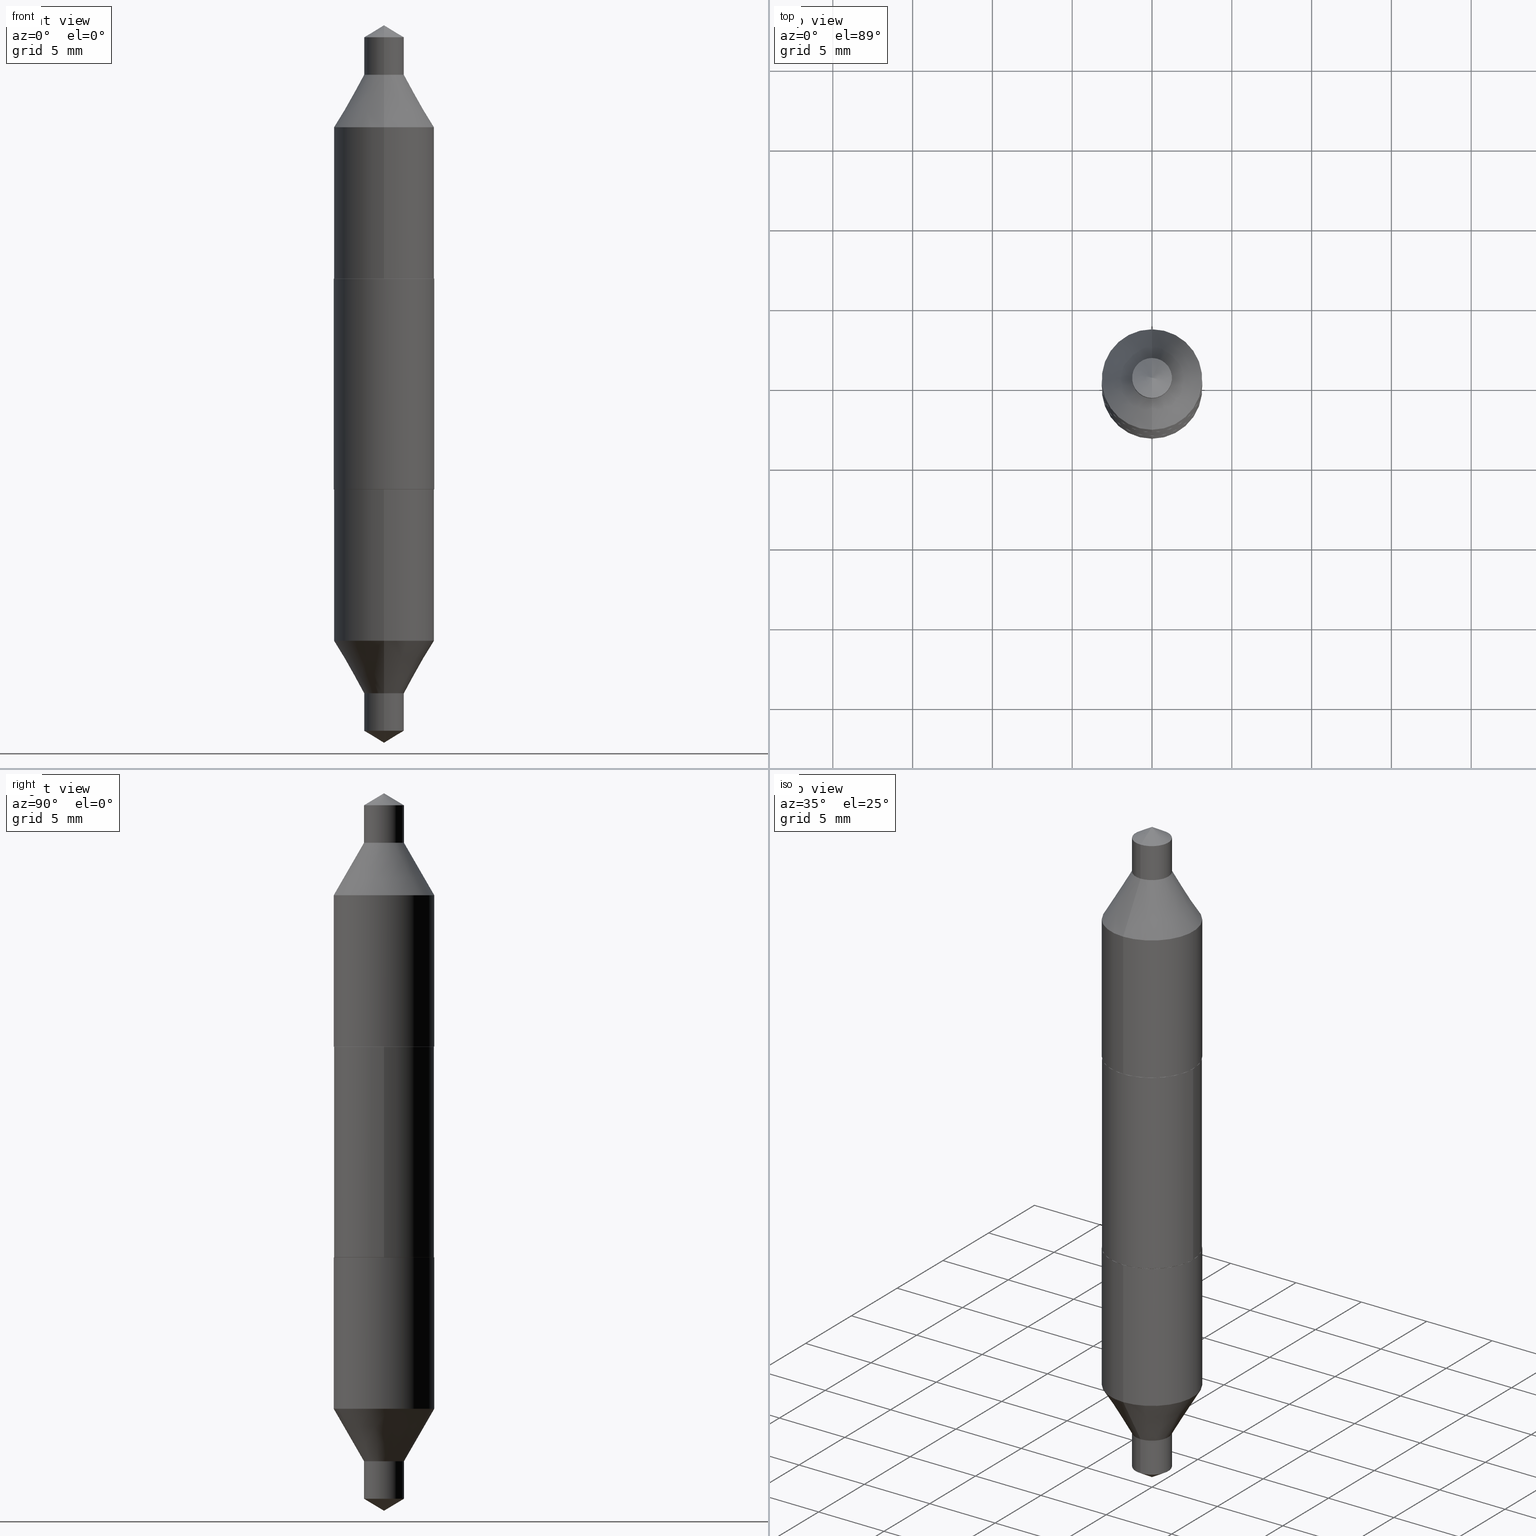
[diagram: canonical four-view strip — front | top / right | iso, engineering-drawing reading convention]
A machine part, canonical four-view strip (front | top / right | iso — engineering-drawing reading convention). The complete STEP part file that produces these views, byte-faithful:
ISO-10303-21;
HEADER;
FILE_DESCRIPTION (( 'STEP AP203' ),
    '1' );
FILE_NAME ('67047.STEP',
    '2024-04-19T15:18:08',
    ( '' ),
    ( '' ),
    'SwSTEP 2.0',
    'SolidWorks 2023',
    '' );
FILE_SCHEMA (( 'CONFIG_CONTROL_DESIGN' ));
ENDSEC;

DATA;
#1 = VERTEX_POINT ( 'NONE', #28 ) ;
#2 = DIRECTION ( 'NONE',  ( 6.982962677686265922E-15, 1.000000000000000000, -3.511075687629503585E-15 ) ) ;
#3 = EDGE_LOOP ( 'NONE', ( #656, #435, #276, #526 ) ) ;
#4 = DIRECTION ( 'NONE',  ( 1.000000000000000000, -6.982962677686266711E-15, 0.000000000000000000 ) ) ;
#5 = ORIENTED_EDGE ( 'NONE', *, *, #601, .F. ) ;
#6 = CIRCLE ( 'NONE', #580, 0.04920000000000000762 ) ;
#7 = AXIS2_PLACEMENT_3D ( 'NONE', #625, #146, #258 ) ;
#8 = CYLINDRICAL_SURFACE ( 'NONE', #59, 0.04920000000000000762 ) ;
#9 = VERTEX_POINT ( 'NONE', #26 ) ;
#10 = PRODUCT_DEFINITION ( 'UNKNOWN', '', #174, #141 ) ;
#11 = AXIS2_PLACEMENT_3D ( 'NONE', #342, #17, #13 ) ;
#12 = DIRECTION ( 'NONE',  ( -2.431786145558266380E-29, 3.511075687629503585E-15, 1.000000000000000000 ) ) ;
#13 = DIRECTION ( 'NONE',  ( -6.982962677686265922E-15, -1.000000000000000000, 2.776268286244169687E-15 ) ) ;
#14 = EDGE_CURVE ( 'NONE', #177, #545, #406, .T. ) ;
#15 = ADVANCED_FACE ( 'NONE', ( #78 ), #152, .T. ) ;
#16 = CARTESIAN_POINT ( 'NONE',  ( -0.1235000000000000264, -3.026486943549399803E-17, -0.2600000000000000089 ) ) ;
#17 = DIRECTION ( 'NONE',  ( 2.459151466812006814E-29, -3.471886990056787975E-15, -1.000000000000000000 ) ) ;
#18 = EDGE_LOOP ( 'NONE', ( #548, #379, #226 ) ) ;
#19 = AXIS2_PLACEMENT_3D ( 'NONE', #36, #31, #351 ) ;
#20 = DIRECTION ( 'NONE',  ( -2.431786145558266380E-29, 3.511075687629503191E-15, 1.000000000000000000 ) ) ;
#21 = AXIS2_PLACEMENT_3D ( 'NONE', #417, #52, #309 ) ;
#22 = CC_DESIGN_APPROVAL ( #461, ( #10 ) ) ;
#23 = DIRECTION ( 'NONE',  ( -1.000000000000000000, 6.982962677686265922E-15, -4.876176775795935793E-29 ) ) ;
#24 = EDGE_CURVE ( 'NONE', #335, #238, #188, .T. ) ;
#25 = DIRECTION ( 'NONE',  ( -2.459151466812006814E-29, 3.471886990056787975E-15, 1.000000000000000000 ) ) ;
#26 = CARTESIAN_POINT ( 'NONE',  ( -0.1240000000000000685, 8.810729923425244214E-16, 0.2595000000000000084 ) ) ;
#27 = DIRECTION ( 'NONE',  ( -2.459151466812006814E-29, 3.471886990056787975E-15, 1.000000000000000000 ) ) ;
#28 = CARTESIAN_POINT ( 'NONE',  ( 0.1235000000000000264, 4.538925740496383212E-17, 0.2600000000000000089 ) ) ;
#29 = VECTOR ( 'NONE', #250, 39.37007874015748854 ) ;
#30 = DIRECTION ( 'NONE',  ( -2.431786145558266380E-29, 3.511075687629503191E-15, 1.000000000000000000 ) ) ;
#31 = DIRECTION ( 'NONE',  ( 2.459151466812006814E-29, -3.471886990056787975E-15, -1.000000000000000000 ) ) ;
#32 = VECTOR ( 'NONE', #701, 39.37007874015748854 ) ;
#33 = AXIS2_PLACEMENT_3D ( 'NONE', #619, #296, #633 ) ;
#34 = CC_DESIGN_PERSON_AND_ORGANIZATION_ASSIGNMENT ( #155, #201, ( #174 ) ) ;
#35 = DIRECTION ( 'NONE',  ( 2.459151466812006814E-29, -3.471886990056787975E-15, -1.000000000000000000 ) ) ;
#36 = CARTESIAN_POINT ( 'NONE',  ( 9.464419532599683666E-28, -1.336107496585793866E-13, -38.48507874015748342 ) ) ;
#37 = ORIENTED_EDGE ( 'NONE', *, *, #573, .T. ) ;
#38 = EDGE_LOOP ( 'NONE', ( #475, #91, #648, #485 ) ) ;
#39 = PERSON_AND_ORGANIZATION_ROLE ( 'design_owner' ) ;
#40 = EDGE_CURVE ( 'NONE', #545, #9, #407, .T. ) ;
#41 = EDGE_LOOP ( 'NONE', ( #302, #689, #278, #273 ) ) ;
#42 = CARTESIAN_POINT ( 'NONE',  ( -3.435617637421579667E-16, -0.04920000000000091661, -0.2599999999999997868 ) ) ;
#43 = DATE_TIME_ROLE ( 'classification_date' ) ;
#44 = EDGE_LOOP ( 'NONE', ( #209, #411, #437, #595 ) ) ;
#45 = LINE ( 'NONE', #584, #125 ) ;
#46 = DIRECTION ( 'NONE',  ( 1.000000000000000000, -6.982962677686266711E-15, 0.000000000000000000 ) ) ;
#47 = CIRCLE ( 'NONE', #133, 0.1240000000000001379 ) ;
#48 = CIRCLE ( 'NONE', #570, 0.1240000000000001379 ) ;
#49 = EDGE_CURVE ( 'NONE', #331, #167, #85, .T. ) ;
#50 = DIRECTION ( 'NONE',  ( 1.000000000000000000, 0.000000000000000000, 0.000000000000000000 ) ) ;
#51 = EDGE_CURVE ( 'NONE', #1, #545, #624, .T. ) ;
#52 = DIRECTION ( 'NONE',  ( -2.445468806185136597E-29, 3.491481338843145583E-15, 1.000000000000000000 ) ) ;
#53 = CALENDAR_DATE ( 2024, 19, 4 ) ;
#54 = CARTESIAN_POINT ( 'NONE',  ( -2.100093278552185320E-29, 2.975077404715579644E-15, 0.8554376575438441543 ) ) ;
#55 = ORIENTED_EDGE ( 'NONE', *, *, #24, .T. ) ;
#56 = DIRECTION ( 'NONE',  ( -2.459151466812006814E-29, 3.471886990056787975E-15, 1.000000000000000000 ) ) ;
#57 = EDGE_LOOP ( 'NONE', ( #534, #37, #321 ) ) ;
#58 = ORIENTED_EDGE ( 'NONE', *, *, #99, .F. ) ;
#59 = AXIS2_PLACEMENT_3D ( 'NONE', #320, #594, #552 ) ;
#60 = APPROVAL ( #532, 'UNSPECIFIED' ) ;
#61 = CYLINDRICAL_SURFACE ( 'NONE', #282, 0.1240000000000000269 ) ;
#62 = ORIENTED_EDGE ( 'NONE', *, *, #343, .F. ) ;
#63 = DIRECTION ( 'NONE',  ( -2.445468806185136597E-29, 3.491481338843145583E-15, 1.000000000000000000 ) ) ;
#64 = ADVANCED_FACE ( 'NONE', ( #560 ), #674, .T. ) ;
#65 = EDGE_LOOP ( 'NONE', ( #383, #557, #551, #271 ) ) ;
#66 = DIRECTION ( 'NONE',  ( 1.000000000000000000, -6.982962677686266711E-15, 4.876176775795935793E-29 ) ) ;
#67 = ORIENTED_EDGE ( 'NONE', *, *, #139, .F. ) ;
#68 = CONICAL_SURFACE ( 'NONE', #433, 65.52281426576880108, 1.029744258676656976 ) ;
#69 = CARTESIAN_POINT ( 'NONE',  ( -1.872775077414575023E-29, 2.654144304097782334E-15, 0.7630000000000000115 ) ) ;
#70 = ADVANCED_FACE ( 'NONE', ( #136 ), #244, .T. ) ;
#71 = DIRECTION ( 'NONE',  ( -5.985567269335927080E-15, -0.8571673007021154422, -0.5150380749100490485 ) ) ;
#72 = CC_DESIGN_PERSON_AND_ORGANIZATION_ASSIGNMENT ( #312, #39, ( #668 ) ) ;
#73 = DIRECTION ( 'NONE',  ( 1.000000000000000000, -6.982962677686267499E-15, 0.000000000000000000 ) ) ;
#74 = DIRECTION ( 'NONE',  ( -2.431786145558266380E-29, 3.511075687629503191E-15, 1.000000000000000000 ) ) ;
#75 = VECTOR ( 'NONE', #129, 39.37007874015748143 ) ;
#76 = CONICAL_SURFACE ( 'NONE', #575, 65.52281426576880108, 1.029744258676656976 ) ;
#77 = CARTESIAN_POINT ( 'NONE',  ( 8.810729923425398042E-16, 0.1239999999999990971, -0.2600000000000004530 ) ) ;
#78 = FACE_OUTER_BOUND ( 'NONE', #231, .T. ) ;
#79 = AXIS2_PLACEMENT_3D ( 'NONE', #178, #515, #669 ) ;
#80 = CARTESIAN_POINT ( 'NONE',  ( 6.358218896081355544E-30, -9.077851480992179461E-16, -0.2600000000000000089 ) ) ;
#81 = DIRECTION ( 'NONE',  ( 2.445468806185136597E-29, -3.491481338843145583E-15, -1.000000000000000000 ) ) ;
#82 = DIRECTION ( 'NONE',  ( -2.445468806185136597E-29, 3.491481338843145583E-15, 1.000000000000000000 ) ) ;
#83 = CARTESIAN_POINT ( 'NONE',  ( 1.859010320823943778E-29, -2.673856218976857578E-15, -0.7630000000000000115 ) ) ;
#84 = MANIFOLD_SOLID_BREP ( 'Body-Move/Copy2[1]', #531 ) ;
#85 = CIRCLE ( 'NONE', #97, 0.1240000000000001379 ) ;
#86 = COORDINATED_UNIVERSAL_TIME_OFFSET ( 5, 0, .BEHIND. ) ;
#87 = DIRECTION ( 'NONE',  ( -6.982962677686265922E-15, -1.000000000000000000, 3.304654831045475864E-15 ) ) ;
#88 = DIRECTION ( 'NONE',  ( -6.982962677686265922E-15, -1.000000000000000000, 3.580042733632603487E-15 ) ) ;
#89 = FACE_OUTER_BOUND ( 'NONE', #205, .T. ) ;
#90 = CIRCLE ( 'NONE', #356, 0.04920000000000000762 ) ;
#91 = ORIENTED_EDGE ( 'NONE', *, *, #225, .T. ) ;
#92 = EDGE_CURVE ( 'NONE', #696, #212, #611, .T. ) ;
#93 = LENGTH_MEASURE_WITH_UNIT ( LENGTH_MEASURE( 0.02539999999999999897 ), #304 );
#94 = DIRECTION ( 'NONE',  ( -2.431786145558266380E-29, 3.511075687629503585E-15, 1.000000000000000000 ) ) ;
#95 = DIRECTION ( 'NONE',  ( 2.459151466812006814E-29, -3.471886990056787975E-15, -1.000000000000000000 ) ) ;
#96 = CIRCLE ( 'NONE', #413, 0.1235000000000000264 ) ;
#97 = AXIS2_PLACEMENT_3D ( 'NONE', #402, #297, #620 ) ;
#98 = DIRECTION ( 'NONE',  ( -6.982962677686265922E-15, -1.000000000000000000, 2.776268286244169687E-15 ) ) ;
#99 = EDGE_CURVE ( 'NONE', #696, #335, #242, .T. ) ;
#100 = DIRECTION ( 'NONE',  ( 1.000000000000000000, -6.982962677686266711E-15, 4.876176775795935793E-29 ) ) ;
#101 = EDGE_CURVE ( 'NONE', #489, #267, #118, .T. ) ;
#102 = PERSON_AND_ORGANIZATION_ROLE ( 'creator' ) ;
#103 = CARTESIAN_POINT ( 'NONE',  ( 8.507017517236641140E-16, 0.1240000000000023306, 0.6334425995938456344 ) ) ;
#104 = ORIENTED_EDGE ( 'NONE', *, *, #247, .F. ) ;
#105 = DIRECTION ( 'NONE',  ( -2.445468806185136597E-29, 3.491481338843145583E-15, 1.000000000000000000 ) ) ;
#106 = VERTEX_POINT ( 'NONE', #233 ) ;
#107 = EDGE_LOOP ( 'NONE', ( #429, #221 ) ) ;
#108 = DIRECTION ( 'NONE',  ( -6.982962677686265922E-15, -1.000000000000000000, 2.776268286244169687E-15 ) ) ;
#109 = ORIENTED_EDGE ( 'NONE', *, *, #590, .T. ) ;
#110 = AXIS2_PLACEMENT_3D ( 'NONE', #165, #317, #279 ) ;
#111 = AXIS2_PLACEMENT_3D ( 'NONE', #232, #82, #73 ) ;
#112 = AXIS2_PLACEMENT_3D ( 'NONE', #605, #27, #189 ) ;
#113 = ADVANCED_FACE ( 'NONE', ( #670 ), #285, .T. ) ;
#114 = LINE ( 'NONE', #491, #32 ) ;
#115 = ORIENTED_EDGE ( 'NONE', *, *, #389, .F. ) ;
#116 = DIRECTION ( 'NONE',  ( 2.459151466812006814E-29, -3.471886990056787975E-15, -1.000000000000000000 ) ) ;
#117 = EDGE_LOOP ( 'NONE', ( #682, #173, #650, #115 ) ) ;
#118 = CIRCLE ( 'NONE', #157, 0.04920000000000000762 ) ;
#119 = EDGE_CURVE ( 'NONE', #167, #498, #568, .T. ) ;
#120 = VECTOR ( 'NONE', #255, 39.37007874015748854 ) ;
#121 = CARTESIAN_POINT ( 'NONE',  ( -3.435617637421457394E-16, -0.04920000000000267909, -0.7629999999999999005 ) ) ;
#122 = ADVANCED_FACE ( 'NONE', ( #661 ), #606, .T. ) ;
#123 = ORIENTED_EDGE ( 'NONE', *, *, #171, .T. ) ;
#124 = CIRCLE ( 'NONE', #500, 0.1239999999999999991 ) ;
#125 = VECTOR ( 'NONE', #362, 39.37007874015748143 ) ;
#126 = CARTESIAN_POINT ( 'NONE',  ( -0.1240000000000000407, -2.496641508727166066E-17, -0.2595000000000000084 ) ) ;
#127 = FACE_OUTER_BOUND ( 'NONE', #57, .T. ) ;
#128 = LINE ( 'NONE', #664, #642 ) ;
#129 = DIRECTION ( 'NONE',  ( -2.445468806185136877E-29, 3.491481338843145188E-15, 1.000000000000000000 ) ) ;
#130 = CC_DESIGN_PERSON_AND_ORGANIZATION_ASSIGNMENT ( #257, #412, ( #447 ) ) ;
#131 = DIRECTION ( 'NONE',  ( -2.431786145558266380E-29, 3.511075687629503585E-15, 1.000000000000000000 ) ) ;
#132 = DIRECTION ( 'NONE',  ( 2.459151466812006814E-29, -3.471886990056787975E-15, -1.000000000000000000 ) ) ;
#133 = AXIS2_PLACEMENT_3D ( 'NONE', #561, #25, #386 ) ;
#134 = DIRECTION ( 'NONE',  ( -6.982962677686265922E-15, -1.000000000000000000, 3.580042733632603487E-15 ) ) ;
#135 = APPROVAL_PERSON_ORGANIZATION ( #306, #60, #470 ) ;
#136 = FACE_OUTER_BOUND ( 'NONE', #107, .T. ) ;
#137 = PERSON_AND_ORGANIZATION ( #400, #479 ) ;
#138 = VERTEX_POINT ( 'NONE', #514 ) ;
#139 = EDGE_CURVE ( 'NONE', #615, #177, #332, .T. ) ;
#140 = ADVANCED_FACE ( 'NONE', ( #127 ), #76, .T. ) ;
#141 = DESIGN_CONTEXT ( 'detailed design', #527, 'design' ) ;
#142 = LINE ( 'NONE', #42, #365 ) ;
#143 = EDGE_CURVE ( 'NONE', #267, #167, #507, .T. ) ;
#144 = APPROVAL_DATE_TIME ( #679, #60 ) ;
#145 = EDGE_LOOP ( 'NONE', ( #5, #492, #159, #67 ) ) ;
#146 = DIRECTION ( 'NONE',  ( -2.431786145558266380E-29, 3.511075687629503191E-15, 1.000000000000000000 ) ) ;
#147 = ORIENTED_EDGE ( 'NONE', *, *, #673, .T. ) ;
#148 = CARTESIAN_POINT ( 'NONE',  ( 3.375365014903383048E-16, 0.04920000000000297052, 0.8554376575438440433 ) ) ;
#149 = CONICAL_SURFACE ( 'NONE', #184, 0.1235000000000000264, 0.7853981633974311816 ) ;
#150 = CARTESIAN_POINT ( 'NONE',  ( -0.1235000000000000264, 1.755898904988734470E-15, 0.2600000000000000089 ) ) ;
#151 = ORIENTED_EDGE ( 'NONE', *, *, #521, .T. ) ;
#152 = CONICAL_SURFACE ( 'NONE', #11, 0.04920000000000000762, 0.5235987755982929315 ) ;
#153 = DIRECTION ( 'NONE',  ( -6.982962677686265922E-15, -1.000000000000000000, 3.470335357805211813E-15 ) ) ;
#154 = ADVANCED_FACE ( 'NONE', ( #637 ), #578, .T. ) ;
#155 = PERSON_AND_ORGANIZATION ( #400, #479 ) ;
#156 = FACE_OUTER_BOUND ( 'NONE', #38, .T. ) ;
#157 = AXIS2_PLACEMENT_3D ( 'NONE', #83, #517, #246 ) ;
#158 = CYLINDRICAL_SURFACE ( 'NONE', #270, 0.1240000000000000269 ) ;
#159 = ORIENTED_EDGE ( 'NONE', *, *, #418, .T. ) ;
#160 = EDGE_LOOP ( 'NONE', ( #329, #456, #495 ) ) ;
#161 = DIRECTION ( 'NONE',  ( -6.982962677686265922E-15, -1.000000000000000000, 2.776268286244169687E-15 ) ) ;
#162 = ORIENTED_EDGE ( 'NONE', *, *, #101, .F. ) ;
#163 = AXIS2_PLACEMENT_3D ( 'NONE', #488, #643, #599 ) ;
#164 = SECURITY_CLASSIFICATION_LEVEL ( 'unclassified' ) ;
#165 = CARTESIAN_POINT ( 'NONE',  ( 1.859010320823943778E-29, -2.673856218976857578E-15, -0.7630000000000000115 ) ) ;
#166 = EDGE_LOOP ( 'NONE', ( #58, #600, #654 ) ) ;
#167 = VERTEX_POINT ( 'NONE', #630 ) ;
#168 = CYLINDRICAL_SURFACE ( 'NONE', #163, 0.04920000000000000762 ) ;
#169 = AXIS2_PLACEMENT_3D ( 'NONE', #476, #530, #204 ) ;
#170 = ORIENTED_EDGE ( 'NONE', *, *, #471, .T. ) ;
#171 = EDGE_CURVE ( 'NONE', #489, #331, #639, .T. ) ;
#172 = DIRECTION ( 'NONE',  ( 1.000000000000000000, -6.982962677686267499E-15, 0.000000000000000000 ) ) ;
#173 = ORIENTED_EDGE ( 'NONE', *, *, #361, .T. ) ;
#174 = PRODUCT_DEFINITION_FORMATION_WITH_SPECIFIED_SOURCE ( 'ANY', '', #668, .NOT_KNOWN. ) ;
#175 = EDGE_CURVE ( 'NONE', #702, #9, #301, .T. ) ;
#176 = DIRECTION ( 'NONE',  ( -2.459151466812006534E-29, 3.471886990056787975E-15, 1.000000000000000000 ) ) ;
#177 = VERTEX_POINT ( 'NONE', #363 ) ;
#178 = CARTESIAN_POINT ( 'NONE',  ( -1.872775077414575023E-29, 2.654144304097782334E-15, 0.7630000000000000115 ) ) ;
#179 = ORIENTED_EDGE ( 'NONE', *, *, #629, .T. ) ;
#180 = CIRCLE ( 'NONE', #659, 0.1240000000000001379 ) ;
#181 = AXIS2_PLACEMENT_3D ( 'NONE', #618, #398, #23 ) ;
#182 = DIRECTION ( 'NONE',  ( -6.982962677686265922E-15, -1.000000000000000000, 2.776268286244169687E-15 ) ) ;
#183 = DIRECTION ( 'NONE',  ( -2.445468806185136597E-29, 3.491481338843145583E-15, 1.000000000000000000 ) ) ;
#184 = AXIS2_PLACEMENT_3D ( 'NONE', #523, #582, #46 ) ;
#185 = EDGE_LOOP ( 'NONE', ( #416, #307, #123, #355 ) ) ;
#186 = AXIS2_PLACEMENT_3D ( 'NONE', #627, #30, #88 ) ;
#187 = CYLINDRICAL_SURFACE ( 'NONE', #547, 0.1240000000000000685 ) ;
#188 = LINE ( 'NONE', #236, #341 ) ;
#189 = DIRECTION ( 'NONE',  ( -6.982962677686265922E-15, -1.000000000000000000, 3.580042733632603487E-15 ) ) ;
#190 = CARTESIAN_POINT ( 'NONE',  ( 0.1240000000000000269, -8.658873720330972259E-16, 6.046459201986962037E-30 ) ) ;
#191 = EDGE_CURVE ( 'NONE', #388, #328, #96, .T. ) ;
#192 = VECTOR ( 'NONE', #290, 39.37007874015748854 ) ;
#193 = LINE ( 'NONE', #394, #325 ) ;
#194 = DIRECTION ( 'NONE',  ( 1.000000000000000000, -6.982962677686267499E-15, 0.000000000000000000 ) ) ;
#195 = CONICAL_SURFACE ( 'NONE', #206, 0.04920000000000000762, 0.5235987755982929315 ) ;
#196 = DIRECTION ( 'NONE',  ( 0.000000000000000000, 0.000000000000000000, 1.000000000000000000 ) ) ;
#197 = CIRCLE ( 'NONE', #112, 0.1239999999999999991 ) ;
#198 = CARTESIAN_POINT ( 'NONE',  ( 6.345991552050428931E-30, -9.060394074297962454E-16, -0.2595000000000000084 ) ) ;
#199 = CC_DESIGN_DATE_AND_TIME_ASSIGNMENT ( #364, #43, ( #447 ) ) ;
#200 = CARTESIAN_POINT ( 'NONE',  ( -6.358218896081354143E-30, 9.077851480992177489E-16, 0.2599999999999999534 ) ) ;
#201 = PERSON_AND_ORGANIZATION_ROLE ( 'design_supplier' ) ;
#202 = CLOSED_SHELL ( 'NONE', ( #15, #399, #241, #113, #268, #426, #64, #593, #370 ) ) ;
#203 = AXIS2_PLACEMENT_3D ( 'NONE', #672, #132, #345 ) ;
#204 = DIRECTION ( 'NONE',  ( -1.000000000000000000, 6.982962677686265922E-15, -4.876176775795935793E-29 ) ) ;
#205 = EDGE_LOOP ( 'NONE', ( #104, #229, #109, #589 ) ) ;
#206 = AXIS2_PLACEMENT_3D ( 'NONE', #374, #215, #161 ) ;
#207 = CARTESIAN_POINT ( 'NONE',  ( 6.358218896081355544E-30, -9.077851480992179461E-16, -0.2600000000000000089 ) ) ;
#208 = VECTOR ( 'NONE', #35, 39.37007874015748143 ) ;
#209 = ORIENTED_EDGE ( 'NONE', *, *, #175, .F. ) ;
#210 =( NAMED_UNIT ( * ) PLANE_ANGLE_UNIT ( ) SI_UNIT ( $, .RADIAN. ) );
#211 = FACE_OUTER_BOUND ( 'NONE', #41, .T. ) ;
#212 = VERTEX_POINT ( 'NONE', #148 ) ;
#213 = APPROVAL_DATE_TIME ( #692, #461 ) ;
#214 = DIRECTION ( 'NONE',  ( -6.982962677686268288E-15, -1.000000000000000000, 3.602282186708557778E-15 ) ) ;
#215 = DIRECTION ( 'NONE',  ( -2.431786145558266380E-29, 3.511075687629503191E-15, 1.000000000000000000 ) ) ;
#216 = ORIENTED_EDGE ( 'NONE', *, *, #612, .T. ) ;
#217 = ORIENTED_EDGE ( 'NONE', *, *, #481, .T. ) ;
#218 = ORIENTED_EDGE ( 'NONE', *, *, #266, .T. ) ;
#219 = DIRECTION ( 'NONE',  ( 6.982962677686265922E-15, 1.000000000000000000, -3.471886990056787975E-15 ) ) ;
#220 = EDGE_CURVE ( 'NONE', #334, #489, #142, .T. ) ;
#221 = ORIENTED_EDGE ( 'NONE', *, *, #555, .F. ) ;
#222 = CARTESIAN_POINT ( 'NONE',  ( 6.358218896081355544E-30, -9.077851480992179461E-16, -0.2600000000000000089 ) ) ;
#223 = ORIENTED_EDGE ( 'NONE', *, *, #414, .T. ) ;
#224 = PLANE ( 'NONE',  #291 ) ;
#225 = EDGE_CURVE ( 'NONE', #167, #331, #180, .T. ) ;
#226 = ORIENTED_EDGE ( 'NONE', *, *, #343, .T. ) ;
#227 = AXIS2_PLACEMENT_3D ( 'NONE', #549, #373, #272 ) ;
#228 = LOCAL_TIME ( 11, 18, 8.000000000000000000, #635 ) ;
#229 = ORIENTED_EDGE ( 'NONE', *, *, #175, .T. ) ;
#230 = PLANE ( 'NONE',  #300 ) ;
#231 = EDGE_LOOP ( 'NONE', ( #387, #217, #216, #596 ) ) ;
#232 = CARTESIAN_POINT ( 'NONE',  ( -6.345991552050428931E-30, 9.060394074297962454E-16, 0.2595000000000000084 ) ) ;
#233 = CARTESIAN_POINT ( 'NONE',  ( 8.507017517236590850E-16, 0.1240000000000009012, 0.2599999999999995648 ) ) ;
#234 = DIRECTION ( 'NONE',  ( -2.431786145558266380E-29, 3.511075687629503191E-15, 1.000000000000000000 ) ) ;
#235 = ADVANCED_FACE ( 'NONE', ( #680 ), #149, .T. ) ;
#236 = CARTESIAN_POINT ( 'NONE',  ( -3.435617637421706871E-16, -0.04919999999999910556, 0.2600000000000001199 ) ) ;
#237 = CIRCLE ( 'NONE', #652, 0.04920000000000000762 ) ;
#238 = VERTEX_POINT ( 'NONE', #305 ) ;
#239 = VECTOR ( 'NONE', #397, 39.37007874015748854 ) ;
#240 = CARTESIAN_POINT ( 'NONE',  ( 2.159308112351996644E-29, -3.097112922183204324E-15, -0.8850000000000000089 ) ) ;
#241 = ADVANCED_FACE ( 'NONE', ( #423 ), #403, .T. ) ;
#242 = LINE ( 'NONE', #460, #428 ) ;
#243 = CARTESIAN_POINT ( 'NONE',  ( -6.358218896081355544E-30, 9.077851480992179461E-16, 0.2600000000000000089 ) ) ;
#244 = PLANE ( 'NONE',  #181 ) ;
#245 = CARTESIAN_POINT ( 'NONE',  ( 2.152130738819065780E-29, -3.107301983552110359E-15, -0.8850000000000000089 ) ) ;
#246 = DIRECTION ( 'NONE',  ( -6.982962677686265922E-15, -1.000000000000000000, 2.776268286244169687E-15 ) ) ;
#247 = EDGE_CURVE ( 'NONE', #702, #1, #313, .T. ) ;
#248 = CONICAL_SURFACE ( 'NONE', #227, 0.04920000000000000762, 0.5235987755982929315 ) ;
#249 = DIMENSIONAL_EXPONENTS ( 1.000000000000000000, 0.000000000000000000, 0.000000000000000000, 0.000000000000000000, 0.000000000000000000, 0.000000000000000000, 0.000000000000000000 ) ;
#250 = DIRECTION ( 'NONE',  ( 3.552713678800443343E-15, 0.4999999999999979461, 0.8660254037844399289 ) ) ;
#251 = DATE_TIME_ROLE ( 'creation_date' ) ;
#252 = DIRECTION ( 'NONE',  ( -2.445468806185136597E-29, 3.491481338843145583E-15, 1.000000000000000000 ) ) ;
#253 = DIRECTION ( 'NONE',  ( -6.982962677686265922E-15, -1.000000000000000000, 2.776268286244169687E-15 ) ) ;
#254 = EDGE_LOOP ( 'NONE', ( #223, #179, #662, #655 ) ) ;
#255 = DIRECTION ( 'NONE',  ( -0.7071067811865353603, 2.382254525458581785E-15, -0.7071067811865595631 ) ) ;
#256 = ADVANCED_FACE ( 'NONE', ( #314 ), #299, .T. ) ;
#257 = PERSON_AND_ORGANIZATION ( #400, #479 ) ;
#258 = DIRECTION ( 'NONE',  ( -6.982962677686265922E-15, -1.000000000000000000, 3.580042733632601120E-15 ) ) ;
#259 = VECTOR ( 'NONE', #559, 39.37007874015748143 ) ;
#260 = CYLINDRICAL_SURFACE ( 'NONE', #420, 0.1240000000000000685 ) ;
#261 = APPROVAL_STATUS ( 'not_yet_approved' ) ;
#262 = CALENDAR_DATE ( 2024, 19, 4 ) ;
#263 = CARTESIAN_POINT ( 'NONE',  ( 3.495870259939901518E-16, 0.04919999999999733614, -0.7630000000000001226 ) ) ;
#264 = ORIENTED_EDGE ( 'NONE', *, *, #663, .F. ) ;
#265 = FACE_OUTER_BOUND ( 'NONE', #371, .T. ) ;
#266 = EDGE_CURVE ( 'NONE', #334, #502, #6, .T. ) ;
#267 = VERTEX_POINT ( 'NONE', #263 ) ;
#268 = ADVANCED_FACE ( 'NONE', ( #535 ), #260, .T. ) ;
#269 = DIRECTION ( 'NONE',  ( 1.000000000000000000, -6.982962677686266711E-15, 0.000000000000000000 ) ) ;
#270 = AXIS2_PLACEMENT_3D ( 'NONE', #367, #586, #100 ) ;
#271 = ORIENTED_EDGE ( 'NONE', *, *, #24, .F. ) ;
#272 = DIRECTION ( 'NONE',  ( -6.982962677686265922E-15, -1.000000000000000000, 2.776268286244169687E-15 ) ) ;
#273 = ORIENTED_EDGE ( 'NONE', *, *, #590, .F. ) ;
#274 = EDGE_LOOP ( 'NONE', ( #583, #327, #375, #359 ) ) ;
#275 = FACE_OUTER_BOUND ( 'NONE', #448, .T. ) ;
#276 = ORIENTED_EDGE ( 'NONE', *, *, #414, .F. ) ;
#277 = CC_DESIGN_PERSON_AND_ORGANIZATION_ASSIGNMENT ( #368, #102, ( #174 ) ) ;
#278 = ORIENTED_EDGE ( 'NONE', *, *, #14, .T. ) ;
#279 = DIRECTION ( 'NONE',  ( -6.982962677686265922E-15, -1.000000000000000000, 2.776268286244169687E-15 ) ) ;
#280 = EDGE_LOOP ( 'NONE', ( #264, #62, #55, #524 ) ) ;
#281 = ORIENTED_EDGE ( 'NONE', *, *, #666, .F. ) ;
#282 = AXIS2_PLACEMENT_3D ( 'NONE', #556, #63, #66 ) ;
#283 = ORIENTED_EDGE ( 'NONE', *, *, #684, .T. ) ;
#284 = CARTESIAN_POINT ( 'NONE',  ( 6.358218896081355544E-30, -9.077851480992177489E-16, -0.2600000000000000089 ) ) ;
#285 = CYLINDRICAL_SURFACE ( 'NONE', #203, 0.1240000000000000685 ) ;
#286 = LINE ( 'NONE', #613, #259 ) ;
#287 = DIRECTION ( 'NONE',  ( -6.982962677686268288E-15, -1.000000000000000000, 3.602282186708557778E-15 ) ) ;
#288 = ADVANCED_FACE ( 'NONE', ( #211 ), #158, .T. ) ;
#289 = DIRECTION ( 'NONE',  ( -6.982962677686265922E-15, -1.000000000000000000, 3.580042733632601120E-15 ) ) ;
#290 = DIRECTION ( 'NONE',  ( 0.7071067811865353603, -7.406550393246761715E-15, -0.7071067811865595631 ) ) ;
#291 = AXIS2_PLACEMENT_3D ( 'NONE', #444, #176, #219 ) ;
#292 = APPROVAL_PERSON_ORGANIZATION ( #137, #461, #574 ) ;
#293 = FACE_OUTER_BOUND ( 'NONE', #280, .T. ) ;
#294 = DIRECTION ( 'NONE',  ( 1.000000000000000000, -6.982962677686266711E-15, 0.000000000000000000 ) ) ;
#295 = ADVANCED_FACE ( 'NONE', ( #539 ), #68, .T. ) ;
#296 = DIRECTION ( 'NONE',  ( -2.459151466812006814E-29, 3.471886990056787975E-15, 1.000000000000000000 ) ) ;
#297 = DIRECTION ( 'NONE',  ( -2.431786145558266380E-29, 3.511075687629503191E-15, 1.000000000000000000 ) ) ;
#298 = CALENDAR_DATE ( 2024, 19, 4 ) ;
#299 = CYLINDRICAL_SURFACE ( 'NONE', #536, 0.04920000000000000762 ) ;
#300 = AXIS2_PLACEMENT_3D ( 'NONE', #588, #378, #2 ) ;
#301 = LINE ( 'NONE', #473, #120 ) ;
#302 = ORIENTED_EDGE ( 'NONE', *, *, #629, .F. ) ;
#303 = APPROVAL_DATE_TIME ( #354, #439 ) ;
#304 =( LENGTH_UNIT ( ) NAMED_UNIT ( * ) SI_UNIT ( $, .METRE. ) );
#305 = CARTESIAN_POINT ( 'NONE',  ( -3.435617637421830623E-16, -0.04919999999999735696, 0.7630000000000001226 ) ) ;
#306 = PERSON_AND_ORGANIZATION ( #400, #479 ) ;
#307 = ORIENTED_EDGE ( 'NONE', *, *, #389, .T. ) ;
#308 = EDGE_CURVE ( 'NONE', #697, #106, #124, .T. ) ;
#309 = DIRECTION ( 'NONE',  ( 1.000000000000000000, -6.982962677686266711E-15, 0.000000000000000000 ) ) ;
#310 = SHAPE_DEFINITION_REPRESENTATION ( #508, #688 ) ;
#311 = MANIFOLD_SOLID_BREP ( 'Body-Move/Copy2[2]', #202 ) ;
#312 = PERSON_AND_ORGANIZATION ( #400, #479 ) ;
#313 = CIRCLE ( 'NONE', #21, 0.1235000000000000264 ) ;
#314 = FACE_OUTER_BOUND ( 'NONE', #117, .T. ) ;
#315 = CIRCLE ( 'NONE', #33, 0.04920000000000000762 ) ;
#316 = ADVANCED_FACE ( 'NONE', ( #89 ), #621, .T. ) ;
#317 = DIRECTION ( 'NONE',  ( -2.431786145558266380E-29, 3.511075687629503191E-15, 1.000000000000000000 ) ) ;
#318 = AXIS2_PLACEMENT_3D ( 'NONE', #676, #81, #294 ) ;
#319 = ORIENTED_EDGE ( 'NONE', *, *, #546, .T. ) ;
#320 = CARTESIAN_POINT ( 'NONE',  ( 6.358218896081354143E-30, -9.077851480992177489E-16, -0.2599999999999999534 ) ) ;
#321 = ORIENTED_EDGE ( 'NONE', *, *, #266, .F. ) ;
#322 = CARTESIAN_POINT ( 'NONE',  ( -8.658873720330824348E-16, -0.1240000000000023583, -0.6334425995938456344 ) ) ;
#323 = AXIS2_PLACEMENT_3D ( 'NONE', #330, #326, #4 ) ;
#324 = ORIENTED_EDGE ( 'NONE', *, *, #143, .T. ) ;
#325 = VECTOR ( 'NONE', #401, 39.37007874015748143 ) ;
#326 = DIRECTION ( 'NONE',  ( 2.445468806185136597E-29, -3.491481338843145583E-15, -1.000000000000000000 ) ) ;
#327 = ORIENTED_EDGE ( 'NONE', *, *, #119, .T. ) ;
#328 = VERTEX_POINT ( 'NONE', #449 ) ;
#329 = ORIENTED_EDGE ( 'NONE', *, *, #573, .F. ) ;
#330 = CARTESIAN_POINT ( 'NONE',  ( -6.358218896081355544E-30, 9.077851480992179461E-16, 0.2600000000000000089 ) ) ;
#331 = VERTEX_POINT ( 'NONE', #322 ) ;
#332 = CIRCLE ( 'NONE', #377, 0.1240000000000000407 ) ;
#333 = CARTESIAN_POINT ( 'NONE',  ( 3.495870259939900532E-16, 0.04919999999999699614, -0.8554376575438443764 ) ) ;
#334 = VERTEX_POINT ( 'NONE', #543 ) ;
#335 = VERTEX_POINT ( 'NONE', #493 ) ;
#336 = CARTESIAN_POINT ( 'NONE',  ( -8.658873720330911123E-16, -0.1240000000000009706, -0.2599999999999995093 ) ) ;
#337 = DIRECTION ( 'NONE',  ( 5.880594550222090713E-15, 0.8571673007021117785, -0.5150380749100550437 ) ) ;
#338 = ADVANCED_FACE ( 'NONE', ( #438 ), #195, .T. ) ;
#339 = ORIENTED_EDGE ( 'NONE', *, *, #247, .T. ) ;
#340 = LINE ( 'NONE', #336, #569 ) ;
#341 = VECTOR ( 'NONE', #667, 39.37007874015748143 ) ;
#342 = CARTESIAN_POINT ( 'NONE',  ( -1.872775077414575023E-29, 2.654144304097782334E-15, 0.7630000000000000115 ) ) ;
#343 = EDGE_CURVE ( 'NONE', #335, #212, #445, .T. ) ;
#344 = CARTESIAN_POINT ( 'NONE',  ( 6.358218896081354143E-30, -9.077851480992177489E-16, -0.2599999999999999534 ) ) ;
#345 = DIRECTION ( 'NONE',  ( -6.982962677686265922E-15, -1.000000000000000000, 3.580042733632601120E-15 ) ) ;
#346 = CIRCLE ( 'NONE', #631, 0.1239999999999999991 ) ;
#347 = LOCAL_TIME ( 11, 18, 8.000000000000000000, #542 ) ;
#348 = DIRECTION ( 'NONE',  ( -2.445468806185136597E-29, 3.491481338843145583E-15, 1.000000000000000000 ) ) ;
#349 = CARTESIAN_POINT ( 'NONE',  ( -2.169296454609612172E-29, 3.082809047569163251E-15, 0.8850000000000000089 ) ) ;
#350 = APPROVAL_STATUS ( 'not_yet_approved' ) ;
#351 = DIRECTION ( 'NONE',  ( -6.982962677686265133E-15, -1.000000000000000000, 3.468864327941574493E-15 ) ) ;
#352 = DIRECTION ( 'NONE',  ( -6.982962677686265922E-15, -1.000000000000000000, 3.580042733632603487E-15 ) ) ;
#353 = ORIENTED_EDGE ( 'NONE', *, *, #544, .T. ) ;
#354 = DATE_AND_TIME ( #53, #228 ) ;
#355 = ORIENTED_EDGE ( 'NONE', *, *, #225, .F. ) ;
#356 = AXIS2_PLACEMENT_3D ( 'NONE', #695, #647, #108 ) ;
#357 = CARTESIAN_POINT ( 'NONE',  ( -3.435617637421830623E-16, -0.04919999999999735696, 0.7630000000000001226 ) ) ;
#358 = VECTOR ( 'NONE', #455, 39.37007874015748854 ) ;
#359 = ORIENTED_EDGE ( 'NONE', *, *, #472, .F. ) ;
#360 = DIRECTION ( 'NONE',  ( -2.431786145558266380E-29, 3.511075687629503191E-15, 1.000000000000000000 ) ) ;
#361 = EDGE_CURVE ( 'NONE', #502, #334, #90, .T. ) ;
#362 = DIRECTION ( 'NONE',  ( -2.445468806185136877E-29, 3.491481338843145188E-15, 1.000000000000000000 ) ) ;
#363 = CARTESIAN_POINT ( 'NONE',  ( 0.1240000000000000407, -1.771926779462893570E-15, -0.2595000000000000084 ) ) ;
#364 = DATE_AND_TIME ( #427, #393 ) ;
#365 = VECTOR ( 'NONE', #94, 39.37007874015748143 ) ;
#366 = LINE ( 'NONE', #518, #422 ) ;
#367 = CARTESIAN_POINT ( 'NONE',  ( 0.000000000000000000, 0.000000000000000000, 0.000000000000000000 ) ) ;
#368 = PERSON_AND_ORGANIZATION ( #400, #479 ) ;
#369 = ADVANCED_FACE ( 'NONE', ( #653 ), #61, .T. ) ;
#370 = ADVANCED_FACE ( 'NONE', ( #275 ), #248, .T. ) ;
#371 = EDGE_LOOP ( 'NONE', ( #218, #496, #162, #396 ) ) ;
#372 = CIRCLE ( 'NONE', #110, 0.04920000000000000762 ) ;
#373 = DIRECTION ( 'NONE',  ( 2.459151466812006814E-29, -3.471886990056787975E-15, -1.000000000000000000 ) ) ;
#374 = CARTESIAN_POINT ( 'NONE',  ( 1.859010320823943778E-29, -2.673856218976857578E-15, -0.7630000000000000115 ) ) ;
#375 = ORIENTED_EDGE ( 'NONE', *, *, #521, .F. ) ;
#376 = CLOSED_SHELL ( 'NONE', ( #316, #369, #235, #70, #410, #288, #154, #122 ) ) ;
#377 = AXIS2_PLACEMENT_3D ( 'NONE', #198, #183, #392 ) ;
#378 = DIRECTION ( 'NONE',  ( 2.431786145558265819E-29, -3.511075687629503585E-15, -1.000000000000000000 ) ) ;
#379 = ORIENTED_EDGE ( 'NONE', *, *, #99, .T. ) ;
#380 = ADVANCED_FACE ( 'NONE', ( #499 ), #230, .F. ) ;
#381 = FACE_OUTER_BOUND ( 'NONE', #65, .T. ) ;
#382 = CIRCLE ( 'NONE', #597, 0.1240000000000000407 ) ;
#383 = ORIENTED_EDGE ( 'NONE', *, *, #616, .F. ) ;
#384 = LINE ( 'NONE', #603, #685 ) ;
#385 = VERTEX_POINT ( 'NONE', #103 ) ;
#386 = DIRECTION ( 'NONE',  ( -6.982962677686265922E-15, -1.000000000000000000, 3.304654831045475864E-15 ) ) ;
#387 = ORIENTED_EDGE ( 'NONE', *, *, #451, .F. ) ;
#388 = VERTEX_POINT ( 'NONE', #541 ) ;
#389 = EDGE_CURVE ( 'NONE', #267, #489, #372, .T. ) ;
#390 = DIRECTION ( 'NONE',  ( -2.459151466812006814E-29, 3.471886990056787975E-15, 1.000000000000000000 ) ) ;
#391 = ADVANCED_FACE ( 'NONE', ( #265 ), #8, .T. ) ;
#392 = DIRECTION ( 'NONE',  ( 1.000000000000000000, -6.982962677686267499E-15, 0.000000000000000000 ) ) ;
#393 = LOCAL_TIME ( 11, 18, 8.000000000000000000, #691 ) ;
#394 = CARTESIAN_POINT ( 'NONE',  ( 2.152130738819065219E-29, -3.107301983552109965E-15, -0.8850000000000000089 ) ) ;
#395 = CARTESIAN_POINT ( 'NONE',  ( 9.464419532599683666E-28, -1.336107496585793866E-13, -38.48507874015748342 ) ) ;
#396 = ORIENTED_EDGE ( 'NONE', *, *, #220, .F. ) ;
#397 = DIRECTION ( 'NONE',  ( -0.7071067811865353603, 7.493145998870309984E-15, 0.7071067811865595631 ) ) ;
#398 = DIRECTION ( 'NONE',  ( 2.438088387897960049E-29, -3.491481338843145188E-15, -1.000000000000000000 ) ) ;
#399 = ADVANCED_FACE ( 'NONE', ( #381 ), #168, .T. ) ;
#400 = PERSON ( 'UNSPECIFIED', 'UNSPECIFIED', 'UNSPECIFIED', ('UNSPECIFIED'), ('UNSPECIFIED'), ('UNSPECIFIED') ) ;
#401 = DIRECTION ( 'NONE',  ( -5.985567269335953112E-15, -0.8571673007021117785, 0.5150380749100550437 ) ) ;
#402 = CARTESIAN_POINT ( 'NONE',  ( 1.543954429461713444E-29, -2.218970380258330031E-15, -0.6334425995938459675 ) ) ;
#403 = CONICAL_SURFACE ( 'NONE', #19, 65.52281426576880108, 1.029744258676656976 ) ;
#404 = VECTOR ( 'NONE', #681, 39.37007874015748854 ) ;
#405 = MECHANICAL_CONTEXT ( 'NONE', #609, 'mechanical' ) ;
#406 = LINE ( 'NONE', #190, #75 ) ;
#407 = CIRCLE ( 'NONE', #646, 0.1240000000000000407 ) ;
#408 = DIRECTION ( 'NONE',  ( -2.431786145558266380E-29, 3.511075687629503191E-15, 1.000000000000000000 ) ) ;
#409 = DIRECTION ( 'NONE',  ( 2.459151466812006814E-29, -3.471886990056787975E-15, -1.000000000000000000 ) ) ;
#410 = ADVANCED_FACE ( 'NONE', ( #591 ), #511, .T. ) ;
#411 = ORIENTED_EDGE ( 'NONE', *, *, #471, .F. ) ;
#412 = PERSON_AND_ORGANIZATION_ROLE ( 'classification_officer' ) ;
#413 = AXIS2_PLACEMENT_3D ( 'NONE', #207, #252, #425 ) ;
#414 = EDGE_CURVE ( 'NONE', #177, #615, #382, .T. ) ;
#415 = FACE_OUTER_BOUND ( 'NONE', #446, .T. ) ;
#416 = ORIENTED_EDGE ( 'NONE', *, *, #143, .F. ) ;
#417 = CARTESIAN_POINT ( 'NONE',  ( -6.358218896081355544E-30, 9.077851480992179461E-16, 0.2600000000000000089 ) ) ;
#418 = EDGE_CURVE ( 'NONE', #388, #177, #114, .T. ) ;
#419 = APPROVAL_ROLE ( '' ) ;
#420 = AXIS2_PLACEMENT_3D ( 'NONE', #200, #409, #690 ) ;
#421 = CIRCLE ( 'NONE', #186, 0.1239999999999999991 ) ;
#422 = VECTOR ( 'NONE', #95, 39.37007874015748143 ) ;
#423 = FACE_OUTER_BOUND ( 'NONE', #166, .T. ) ;
#424 = CARTESIAN_POINT ( 'NONE',  ( 1.859010320823943778E-29, -2.673856218976857578E-15, -0.7630000000000000115 ) ) ;
#425 = DIRECTION ( 'NONE',  ( 1.000000000000000000, -6.982962677686266711E-15, 0.000000000000000000 ) ) ;
#426 = ADVANCED_FACE ( 'NONE', ( #497 ), #224, .F. ) ;
#427 = CALENDAR_DATE ( 2024, 19, 4 ) ;
#428 = VECTOR ( 'NONE', #71, 39.37007874015748854 ) ;
#429 = ORIENTED_EDGE ( 'NONE', *, *, #191, .F. ) ;
#430 = COORDINATED_UNIVERSAL_TIME_OFFSET ( 5, 0, .BEHIND. ) ;
#431 = VECTOR ( 'NONE', #683, 39.37007874015748143 ) ;
#432 = DIRECTION ( 'NONE',  ( -2.459151466812006814E-29, 3.471886990056787975E-15, 1.000000000000000000 ) ) ;
#433 = AXIS2_PLACEMENT_3D ( 'NONE', #487, #693, #214 ) ;
#434 = DIRECTION ( 'NONE',  ( -6.982962677686265922E-15, -1.000000000000000000, 2.776268286244169687E-15 ) ) ;
#435 = ORIENTED_EDGE ( 'NONE', *, *, #601, .T. ) ;
#436 = ORIENTED_EDGE ( 'NONE', *, *, #612, .F. ) ;
#437 = ORIENTED_EDGE ( 'NONE', *, *, #51, .T. ) ;
#438 = FACE_OUTER_BOUND ( 'NONE', #185, .T. ) ;
#439 = APPROVAL ( #261, 'UNSPECIFIED' ) ;
#440 = ORIENTED_EDGE ( 'NONE', *, *, #308, .F. ) ;
#441 = CARTESIAN_POINT ( 'NONE',  ( 6.345991552050428931E-30, -9.060394074297962454E-16, -0.2595000000000000084 ) ) ;
#442 = EDGE_LOOP ( 'NONE', ( #436, #579, #319, #651 ) ) ;
#443 = EDGE_CURVE ( 'NONE', #581, #697, #384, .T. ) ;
#444 = CARTESIAN_POINT ( 'NONE',  ( -6.858204991950922293E-30, 8.361842934265655766E-16, 0.2599999999999999534 ) ) ;
#445 = CIRCLE ( 'NONE', #490, 0.04920000000000000762 ) ;
#446 = EDGE_LOOP ( 'NONE', ( #478, #324, #553, #469 ) ) ;
#447 = SECURITY_CLASSIFICATION ( '', '', #164 ) ;
#448 = EDGE_LOOP ( 'NONE', ( #658, #529, #147, #353 ) ) ;
#449 = CARTESIAN_POINT ( 'NONE',  ( -0.1235000000000000264, -2.761564226138283088E-17, -0.2600000000000000089 ) ) ;
#450 = EDGE_LOOP ( 'NONE', ( #281, #604, #607, #592 ) ) ;
#451 = EDGE_CURVE ( 'NONE', #138, #238, #698, .T. ) ;
#452 = DIRECTION ( 'NONE',  ( 2.459151466812006814E-29, -3.471886990056787975E-15, -1.000000000000000000 ) ) ;
#453 = VECTOR ( 'NONE', #337, 39.37007874015748143 ) ;
#454 = DIRECTION ( 'NONE',  ( 2.459151466812006814E-29, -3.471886990056787975E-15, -1.000000000000000000 ) ) ;
#455 = DIRECTION ( 'NONE',  ( 6.090539988449788691E-15, 0.8571673007021154422, 0.5150380749100490485 ) ) ;
#456 = ORIENTED_EDGE ( 'NONE', *, *, #614, .T. ) ;
#457 = CIRCLE ( 'NONE', #477, 0.1235000000000000264 ) ;
#458 = APPROVAL_PERSON_ORGANIZATION ( #525, #439, #419 ) ;
#459 = CYLINDRICAL_SURFACE ( 'NONE', #537, 0.04920000000000000762 ) ;
#460 = CARTESIAN_POINT ( 'NONE',  ( -2.176349048128626075E-29, 3.072619986200257610E-15, 0.8850000000000000089 ) ) ;
#461 = APPROVAL ( #350, 'UNSPECIFIED' ) ;
#462 = CARTESIAN_POINT ( 'NONE',  ( -6.358218896081354143E-30, 9.077851480992177489E-16, 0.2599999999999999534 ) ) ;
#463 = CARTESIAN_POINT ( 'NONE',  ( 0.1235000000000000264, 4.538925740496383212E-17, 0.2600000000000000089 ) ) ;
#464 = APPLICATION_PROTOCOL_DEFINITION ( 'international standard', 'config_control_design', 1994, #527 ) ;
#465 = DIRECTION ( 'NONE',  ( -2.431786145558266380E-29, 3.511075687629503585E-15, 1.000000000000000000 ) ) ;
#466 = CC_DESIGN_PERSON_AND_ORGANIZATION_ASSIGNMENT ( #486, #638, ( #10 ) ) ;
#467 =( CONVERSION_BASED_UNIT ( 'INCH', #93 ) LENGTH_UNIT ( ) NAMED_UNIT ( #249 ) );
#468 = CARTESIAN_POINT ( 'NONE',  ( 1.543954429461713444E-29, -2.218970380258330031E-15, -0.6334425995938459675 ) ) ;
#469 = ORIENTED_EDGE ( 'NONE', *, *, #171, .F. ) ;
#470 = APPROVAL_ROLE ( '' ) ;
#471 = EDGE_CURVE ( 'NONE', #1, #702, #457, .T. ) ;
#472 = EDGE_CURVE ( 'NONE', #331, #700, #340, .T. ) ;
#473 = CARTESIAN_POINT ( 'NONE',  ( -0.1235000000000000264, 1.755056650824002466E-15, 0.2600000000000000089 ) ) ;
#474 = CYLINDRICAL_SURFACE ( 'NONE', #7, 0.1240000000000000685 ) ;
#475 = ORIENTED_EDGE ( 'NONE', *, *, #119, .F. ) ;
#476 = CARTESIAN_POINT ( 'NONE',  ( -6.860229227156873476E-30, 8.358944114238426139E-16, 0.2600000000000000089 ) ) ;
#477 = AXIS2_PLACEMENT_3D ( 'NONE', #243, #617, #567 ) ;
#478 = ORIENTED_EDGE ( 'NONE', *, *, #101, .T. ) ;
#479 = ORGANIZATION ( 'UNSPECIFIED', 'UNSPECIFIED', '' ) ;
#480 = CARTESIAN_POINT ( 'NONE',  ( 3.375365014903529973E-16, 0.04920000000000091661, 0.2599999999999997868 ) ) ;
#481 = EDGE_CURVE ( 'NONE', #138, #385, #286, .T. ) ;
#482 = DIRECTION ( 'NONE',  ( -2.431786145558266380E-29, 3.511075687629503191E-15, 1.000000000000000000 ) ) ;
#483 = CALENDAR_DATE ( 2024, 19, 4 ) ;
#484 = PRODUCT_RELATED_PRODUCT_CATEGORY ( 'detail', '', ( #668 ) ) ;
#485 = ORIENTED_EDGE ( 'NONE', *, *, #684, .F. ) ;
#486 = PERSON_AND_ORGANIZATION ( #400, #479 ) ;
#487 = CARTESIAN_POINT ( 'NONE',  ( -9.358392379927096122E-28, 1.351291188317584499E-13, 38.48507874015748342 ) ) ;
#488 = CARTESIAN_POINT ( 'NONE',  ( -6.358218896081354143E-30, 9.077851480992177489E-16, 0.2599999999999999534 ) ) ;
#489 = VERTEX_POINT ( 'NONE', #121 ) ;
#490 = AXIS2_PLACEMENT_3D ( 'NONE', #54, #56, #434 ) ;
#491 = CARTESIAN_POINT ( 'NONE',  ( 0.1235000000000000264, -1.770181038793472066E-15, -0.2600000000000000089 ) ) ;
#492 = ORIENTED_EDGE ( 'NONE', *, *, #555, .T. ) ;
#493 = CARTESIAN_POINT ( 'NONE',  ( -3.435617637421853303E-16, -0.04919999999999703083, 0.8554376575438443764 ) ) ;
#494 = ADVANCED_FACE ( 'NONE', ( #563 ), #187, .T. ) ;
#495 = ORIENTED_EDGE ( 'NONE', *, *, #361, .F. ) ;
#496 = ORIENTED_EDGE ( 'NONE', *, *, #566, .T. ) ;
#497 = FACE_OUTER_BOUND ( 'NONE', #645, .T. ) ;
#498 = VERTEX_POINT ( 'NONE', #77 ) ;
#499 = FACE_OUTER_BOUND ( 'NONE', #554, .T. ) ;
#500 = AXIS2_PLACEMENT_3D ( 'NONE', #626, #432, #352 ) ;
#501 = CC_DESIGN_APPROVAL ( #60, ( #174 ) ) ;
#502 = VERTEX_POINT ( 'NONE', #333 ) ;
#503 = ORIENTED_EDGE ( 'NONE', *, *, #546, .F. ) ;
#504 = LINE ( 'NONE', #240, #358 ) ;
#505 = CARTESIAN_POINT ( 'NONE',  ( 8.810729923425308309E-16, 0.1239999999999991526, -0.2600000000000003975 ) ) ;
#506 = DIRECTION ( 'NONE',  ( -6.982962677686265922E-15, -1.000000000000000000, 3.470335357805211813E-15 ) ) ;
#507 = LINE ( 'NONE', #519, #29 ) ;
#508 = PRODUCT_DEFINITION_SHAPE ( 'NONE', 'NONE',  #10 ) ;
#509 = CARTESIAN_POINT ( 'NONE',  ( 0.1240000000000000407, 4.015203539669884070E-17, 0.2595000000000000084 ) ) ;
#510 = DIRECTION ( 'NONE',  ( -6.982962677686265133E-15, -1.000000000000000000, 3.468864327941574493E-15 ) ) ;
#511 = CONICAL_SURFACE ( 'NONE', #640, 0.1235000000000000264, 0.7853981633974311816 ) ;
#512 =( GEOMETRIC_REPRESENTATION_CONTEXT ( 3 ) GLOBAL_UNCERTAINTY_ASSIGNED_CONTEXT ( ( #623 ) ) GLOBAL_UNIT_ASSIGNED_CONTEXT ( ( #467, #210, #675 ) ) REPRESENTATION_CONTEXT ( 'NONE', 'WORKASPACE' ) );
#513 = LINE ( 'NONE', #16, #239 ) ;
#514 = CARTESIAN_POINT ( 'NONE',  ( 3.375365014903394388E-16, 0.04920000000000266521, 0.7629999999999999005 ) ) ;
#515 = DIRECTION ( 'NONE',  ( -2.459151466812006814E-29, 3.471886990056787975E-15, 1.000000000000000000 ) ) ;
#516 = VECTOR ( 'NONE', #465, 39.37007874015748143 ) ;
#517 = DIRECTION ( 'NONE',  ( -2.431786145558266380E-29, 3.511075687629503191E-15, 1.000000000000000000 ) ) ;
#518 = CARTESIAN_POINT ( 'NONE',  ( 8.507017517236639168E-16, 0.1240000000000009706, 0.2599999999999995093 ) ) ;
#519 = CARTESIAN_POINT ( 'NONE',  ( 3.495870259939878345E-16, 0.04919999999999733614, -0.7630000000000001226 ) ) ;
#520 = EDGE_CURVE ( 'NONE', #238, #138, #237, .T. ) ;
#521 = EDGE_CURVE ( 'NONE', #700, #498, #346, .T. ) ;
#522 = CARTESIAN_POINT ( 'NONE',  ( -8.658873720330906192E-16, -0.1240000000000009012, -0.2599999999999995648 ) ) ;
#523 = CARTESIAN_POINT ( 'NONE',  ( 6.358218896081355544E-30, -9.077851480992179461E-16, -0.2600000000000000089 ) ) ;
#524 = ORIENTED_EDGE ( 'NONE', *, *, #520, .T. ) ;
#525 = PERSON_AND_ORGANIZATION ( #400, #479 ) ;
#526 = ORIENTED_EDGE ( 'NONE', *, *, #418, .F. ) ;
#527 = APPLICATION_CONTEXT ( 'configuration controlled 3d designs of mechanical parts and assemblies' ) ;
#528 = APPLICATION_PROTOCOL_DEFINITION ( 'international standard', 'config_control_design', 1994, #609 ) ;
#529 = ORIENTED_EDGE ( 'NONE', *, *, #520, .F. ) ;
#530 = DIRECTION ( 'NONE',  ( -2.438088387897960049E-29, 3.491481338843145188E-15, 1.000000000000000000 ) ) ;
#531 = CLOSED_SHELL ( 'NONE', ( #641, #391, #140, #494, #644, #380, #295, #256, #338 ) ) ;
#532 = APPROVAL_STATUS ( 'not_yet_approved' ) ;
#533 = LINE ( 'NONE', #480, #208 ) ;
#534 = ORIENTED_EDGE ( 'NONE', *, *, #614, .F. ) ;
#535 = FACE_OUTER_BOUND ( 'NONE', #450, .T. ) ;
#536 = AXIS2_PLACEMENT_3D ( 'NONE', #678, #634, #153 ) ;
#537 = AXIS2_PLACEMENT_3D ( 'NONE', #462, #452, #506 ) ;
#538 = CARTESIAN_POINT ( 'NONE',  ( 0.000000000000000000, 0.000000000000000000, 0.000000000000000000 ) ) ;
#539 = FACE_OUTER_BOUND ( 'NONE', #160, .T. ) ;
#540 = DATE_AND_TIME ( #262, #632 ) ;
#541 = CARTESIAN_POINT ( 'NONE',  ( 0.1235000000000000264, -1.770181038793472066E-15, -0.2600000000000000089 ) ) ;
#542 = COORDINATED_UNIVERSAL_TIME_OFFSET ( 5, 0, .BEHIND. ) ;
#543 = CARTESIAN_POINT ( 'NONE',  ( -3.435617637421434714E-16, -0.04920000000000299828, -0.8554376575438440433 ) ) ;
#544 = EDGE_CURVE ( 'NONE', #581, #385, #47, .T. ) ;
#545 = VERTEX_POINT ( 'NONE', #509 ) ;
#546 = EDGE_CURVE ( 'NONE', #106, #697, #197, .T. ) ;
#547 = AXIS2_PLACEMENT_3D ( 'NONE', #344, #20, #289 ) ;
#548 = ORIENTED_EDGE ( 'NONE', *, *, #92, .F. ) ;
#549 = CARTESIAN_POINT ( 'NONE',  ( -1.872775077414575023E-29, 2.654144304097782334E-15, 0.7630000000000000115 ) ) ;
#550 = CIRCLE ( 'NONE', #610, 0.1235000000000000264 ) ;
#551 = ORIENTED_EDGE ( 'NONE', *, *, #451, .T. ) ;
#552 = DIRECTION ( 'NONE',  ( -6.982962677686265922E-15, -1.000000000000000000, 3.470335357805211813E-15 ) ) ;
#553 = ORIENTED_EDGE ( 'NONE', *, *, #49, .F. ) ;
#554 = EDGE_LOOP ( 'NONE', ( #151, #283 ) ) ;
#555 = EDGE_CURVE ( 'NONE', #328, #388, #550, .T. ) ;
#556 = CARTESIAN_POINT ( 'NONE',  ( 0.000000000000000000, 0.000000000000000000, 0.000000000000000000 ) ) ;
#557 = ORIENTED_EDGE ( 'NONE', *, *, #663, .T. ) ;
#558 = MANIFOLD_SOLID_BREP ( 'Body-Move/Copy2[3]', #376 ) ;
#559 = DIRECTION ( 'NONE',  ( 3.430248998885751187E-15, 0.4999999999999918954, -0.8660254037844432595 ) ) ;
#560 = FACE_OUTER_BOUND ( 'NONE', #18, .T. ) ;
#561 = CARTESIAN_POINT ( 'NONE',  ( -1.554173806169430922E-29, 2.204335651162077937E-15, 0.6334425995938459675 ) ) ;
#562 = CARTESIAN_POINT ( 'NONE',  ( -9.358392379927096122E-28, 1.351291188317584499E-13, 38.48507874015748342 ) ) ;
#563 = FACE_OUTER_BOUND ( 'NONE', #274, .T. ) ;
#564 = CARTESIAN_POINT ( 'NONE',  ( -6.345991552050428931E-30, 9.060394074297962454E-16, 0.2595000000000000084 ) ) ;
#565 = VERTEX_POINT ( 'NONE', #245 ) ;
#566 = EDGE_CURVE ( 'NONE', #502, #267, #128, .T. ) ;
#567 = DIRECTION ( 'NONE',  ( 1.000000000000000000, -6.982962677686266711E-15, 0.000000000000000000 ) ) ;
#568 = LINE ( 'NONE', #505, #516 ) ;
#569 = VECTOR ( 'NONE', #12, 39.37007874015748143 ) ;
#570 = AXIS2_PLACEMENT_3D ( 'NONE', #660, #390, #608 ) ;
#571 = DIRECTION ( 'NONE',  ( 1.000000000000000000, -6.982962677686266711E-15, 0.000000000000000000 ) ) ;
#572 = DIRECTION ( 'NONE',  ( -2.445468806185136597E-29, 3.491481338843145583E-15, 1.000000000000000000 ) ) ;
#573 = EDGE_CURVE ( 'NONE', #565, #502, #504, .T. ) ;
#574 = APPROVAL_ROLE ( '' ) ;
#575 = AXIS2_PLACEMENT_3D ( 'NONE', #562, #74, #287 ) ;
#576 = CARTESIAN_POINT ( 'NONE',  ( -3.435617637421457394E-16, -0.04920000000000267909, -0.7629999999999999005 ) ) ;
#577 = CARTESIAN_POINT ( 'NONE',  ( -8.658873720331032410E-16, -0.1239999999999990971, 0.2600000000000004530 ) ) ;
#578 = PLANE ( 'NONE',  #169 ) ;
#579 = ORIENTED_EDGE ( 'NONE', *, *, #666, .T. ) ;
#580 = AXIS2_PLACEMENT_3D ( 'NONE', #585, #482, #98 ) ;
#581 = VERTEX_POINT ( 'NONE', #657 ) ;
#582 = DIRECTION ( 'NONE',  ( -2.445468806185136597E-29, 3.491481338843145583E-15, 1.000000000000000000 ) ) ;
#583 = ORIENTED_EDGE ( 'NONE', *, *, #49, .T. ) ;
#584 = CARTESIAN_POINT ( 'NONE',  ( -0.1240000000000000269, 8.810729923425244214E-16, -6.099479511916084548E-30 ) ) ;
#585 = CARTESIAN_POINT ( 'NONE',  ( 2.083798935766923315E-29, -2.998411831000471472E-15, -0.8554376575438441543 ) ) ;
#586 = DIRECTION ( 'NONE',  ( -2.445468806185136597E-29, 3.491481338843145583E-15, 1.000000000000000000 ) ) ;
#587 = CC_DESIGN_APPROVAL ( #439, ( #447 ) ) ;
#588 = CARTESIAN_POINT ( 'NONE',  ( 5.858232800211785993E-30, -9.793860027718697240E-16, -0.2599999999999999534 ) ) ;
#589 = ORIENTED_EDGE ( 'NONE', *, *, #51, .F. ) ;
#590 = EDGE_CURVE ( 'NONE', #9, #545, #622, .T. ) ;
#591 = FACE_OUTER_BOUND ( 'NONE', #145, .T. ) ;
#592 = ORIENTED_EDGE ( 'NONE', *, *, #308, .T. ) ;
#593 = ADVANCED_FACE ( 'NONE', ( #293 ), #459, .T. ) ;
#594 = DIRECTION ( 'NONE',  ( -2.431786145558266380E-29, 3.511075687629503191E-15, 1.000000000000000000 ) ) ;
#595 = ORIENTED_EDGE ( 'NONE', *, *, #40, .T. ) ;
#596 = ORIENTED_EDGE ( 'NONE', *, *, #673, .F. ) ;
#597 = AXIS2_PLACEMENT_3D ( 'NONE', #441, #649, #172 ) ;
#598 = AXIS2_PLACEMENT_3D ( 'NONE', #424, #408, #253 ) ;
#599 = DIRECTION ( 'NONE',  ( -6.982962677686265922E-15, -1.000000000000000000, 3.470335357805211813E-15 ) ) ;
#600 = ORIENTED_EDGE ( 'NONE', *, *, #92, .T. ) ;
#601 = EDGE_CURVE ( 'NONE', #328, #615, #513, .T. ) ;
#602 = CC_DESIGN_DATE_AND_TIME_ASSIGNMENT ( #540, #251, ( #10 ) ) ;
#603 = CARTESIAN_POINT ( 'NONE',  ( -8.658873720331037340E-16, -0.1239999999999991526, 0.2600000000000003975 ) ) ;
#604 = ORIENTED_EDGE ( 'NONE', *, *, #544, .F. ) ;
#605 = CARTESIAN_POINT ( 'NONE',  ( -6.358218896081355544E-30, 9.077851480992177489E-16, 0.2600000000000000089 ) ) ;
#606 = CONICAL_SURFACE ( 'NONE', #318, 0.1235000000000000264, 0.7853981633974311816 ) ;
#607 = ORIENTED_EDGE ( 'NONE', *, *, #443, .T. ) ;
#608 = DIRECTION ( 'NONE',  ( -6.982962677686265922E-15, -1.000000000000000000, 3.304654831045475864E-15 ) ) ;
#609 = APPLICATION_CONTEXT ( 'configuration controlled 3d designs of mechanical parts and assemblies' ) ;
#610 = AXIS2_PLACEMENT_3D ( 'NONE', #80, #348, #571 ) ;
#611 = LINE ( 'NONE', #349, #453 ) ;
#612 = EDGE_CURVE ( 'NONE', #385, #581, #48, .T. ) ;
#613 = CARTESIAN_POINT ( 'NONE',  ( 3.375365014903406221E-16, 0.04920000000000266521, 0.7629999999999999005 ) ) ;
#614 = EDGE_CURVE ( 'NONE', #565, #334, #193, .T. ) ;
#615 = VERTEX_POINT ( 'NONE', #126 ) ;
#616 = EDGE_CURVE ( 'NONE', #212, #335, #315, .T. ) ;
#617 = DIRECTION ( 'NONE',  ( -2.445468806185136597E-29, 3.491481338843145583E-15, 1.000000000000000000 ) ) ;
#618 = CARTESIAN_POINT ( 'NONE',  ( 5.856208565005839013E-30, -9.796758847745931798E-16, -0.2600000000000000089 ) ) ;
#619 = CARTESIAN_POINT ( 'NONE',  ( -2.100093278552185320E-29, 2.975077404715579644E-15, 0.8554376575438441543 ) ) ;
#620 = DIRECTION ( 'NONE',  ( -6.982962677686265922E-15, -1.000000000000000000, 3.304654831045475864E-15 ) ) ;
#621 = CONICAL_SURFACE ( 'NONE', #323, 0.1235000000000000264, 0.7853981633974311816 ) ;
#622 = CIRCLE ( 'NONE', #111, 0.1240000000000000407 ) ;
#623 = UNCERTAINTY_MEASURE_WITH_UNIT (LENGTH_MEASURE( 1.000000000000000082E-05 ), #467, 'distance_accuracy_value', 'NONE');
#624 = LINE ( 'NONE', #463, #192 ) ;
#625 = CARTESIAN_POINT ( 'NONE',  ( 6.358218896081354143E-30, -9.077851480992177489E-16, -0.2599999999999999534 ) ) ;
#626 = CARTESIAN_POINT ( 'NONE',  ( -6.358218896081355544E-30, 9.077851480992177489E-16, 0.2600000000000000089 ) ) ;
#627 = CARTESIAN_POINT ( 'NONE',  ( 6.358218896081355544E-30, -9.077851480992177489E-16, -0.2600000000000000089 ) ) ;
#628 = EDGE_LOOP ( 'NONE', ( #170, #339 ) ) ;
#629 = EDGE_CURVE ( 'NONE', #615, #9, #45, .T. ) ;
#630 = CARTESIAN_POINT ( 'NONE',  ( 8.810729923425355640E-16, 0.1239999999999979174, -0.6334425995938464116 ) ) ;
#631 = AXIS2_PLACEMENT_3D ( 'NONE', #284, #234, #134 ) ;
#632 = LOCAL_TIME ( 11, 18, 8.000000000000000000, #430 ) ;
#633 = DIRECTION ( 'NONE',  ( -6.982962677686265922E-15, -1.000000000000000000, 2.776268286244169687E-15 ) ) ;
#634 = DIRECTION ( 'NONE',  ( -2.431786145558266380E-29, 3.511075687629503191E-15, 1.000000000000000000 ) ) ;
#635 = COORDINATED_UNIVERSAL_TIME_OFFSET ( 5, 0, .BEHIND. ) ;
#636 = LINE ( 'NONE', #357, #404 ) ;
#637 = FACE_OUTER_BOUND ( 'NONE', #628, .T. ) ;
#638 = PERSON_AND_ORGANIZATION_ROLE ( 'creator' ) ;
#639 = LINE ( 'NONE', #576, #431 ) ;
#640 = AXIS2_PLACEMENT_3D ( 'NONE', #222, #105, #269 ) ;
#641 = ADVANCED_FACE ( 'NONE', ( #415 ), #699, .T. ) ;
#642 = VECTOR ( 'NONE', #131, 39.37007874015748143 ) ;
#643 = DIRECTION ( 'NONE',  ( 2.459151466812006814E-29, -3.471886990056787975E-15, -1.000000000000000000 ) ) ;
#644 = ADVANCED_FACE ( 'NONE', ( #156 ), #474, .T. ) ;
#645 = EDGE_LOOP ( 'NONE', ( #440, #503 ) ) ;
#646 = AXIS2_PLACEMENT_3D ( 'NONE', #564, #572, #194 ) ;
#647 = DIRECTION ( 'NONE',  ( -2.431786145558266380E-29, 3.511075687629503191E-15, 1.000000000000000000 ) ) ;
#648 = ORIENTED_EDGE ( 'NONE', *, *, #472, .T. ) ;
#649 = DIRECTION ( 'NONE',  ( -2.445468806185136597E-29, 3.491481338843145583E-15, 1.000000000000000000 ) ) ;
#650 = ORIENTED_EDGE ( 'NONE', *, *, #220, .T. ) ;
#651 = ORIENTED_EDGE ( 'NONE', *, *, #443, .F. ) ;
#652 = AXIS2_PLACEMENT_3D ( 'NONE', #69, #671, #182 ) ;
#653 = FACE_OUTER_BOUND ( 'NONE', #254, .T. ) ;
#654 = ORIENTED_EDGE ( 'NONE', *, *, #616, .T. ) ;
#655 = ORIENTED_EDGE ( 'NONE', *, *, #14, .F. ) ;
#656 = ORIENTED_EDGE ( 'NONE', *, *, #191, .T. ) ;
#657 = CARTESIAN_POINT ( 'NONE',  ( -8.658873720331133976E-16, -0.1239999999999979313, 0.6334425995938464116 ) ) ;
#658 = ORIENTED_EDGE ( 'NONE', *, *, #481, .F. ) ;
#659 = AXIS2_PLACEMENT_3D ( 'NONE', #468, #360, #87 ) ;
#660 = CARTESIAN_POINT ( 'NONE',  ( -1.554173806169430922E-29, 2.204335651162077937E-15, 0.6334425995938459675 ) ) ;
#661 = FACE_OUTER_BOUND ( 'NONE', #44, .T. ) ;
#662 = ORIENTED_EDGE ( 'NONE', *, *, #40, .F. ) ;
#663 = EDGE_CURVE ( 'NONE', #212, #138, #533, .T. ) ;
#664 = CARTESIAN_POINT ( 'NONE',  ( 3.495870259939756565E-16, 0.04919999999999910556, -0.2600000000000001199 ) ) ;
#665 = AXIS2_PLACEMENT_3D ( 'NONE', #538, #196, #50 ) ;
#666 = EDGE_CURVE ( 'NONE', #385, #106, #366, .T. ) ;
#667 = DIRECTION ( 'NONE',  ( 2.459151466812006814E-29, -3.471886990056787975E-15, -1.000000000000000000 ) ) ;
#668 = PRODUCT ( '67047', '67047', '', ( #405 ) ) ;
#669 = DIRECTION ( 'NONE',  ( -6.982962677686265922E-15, -1.000000000000000000, 2.776268286244169687E-15 ) ) ;
#670 = FACE_OUTER_BOUND ( 'NONE', #442, .T. ) ;
#671 = DIRECTION ( 'NONE',  ( -2.459151466812006814E-29, 3.471886990056787975E-15, 1.000000000000000000 ) ) ;
#672 = CARTESIAN_POINT ( 'NONE',  ( -6.358218896081354143E-30, 9.077851480992177489E-16, 0.2599999999999999534 ) ) ;
#673 = EDGE_CURVE ( 'NONE', #238, #581, #636, .T. ) ;
#674 = CONICAL_SURFACE ( 'NONE', #694, 65.52281426576880108, 1.029744258676656976 ) ;
#675 =( NAMED_UNIT ( * ) SI_UNIT ( $, .STERADIAN. ) SOLID_ANGLE_UNIT ( ) );
#676 = CARTESIAN_POINT ( 'NONE',  ( -6.358218896081355544E-30, 9.077851480992179461E-16, 0.2600000000000000089 ) ) ;
#677 = CC_DESIGN_SECURITY_CLASSIFICATION ( #447, ( #174 ) ) ;
#678 = CARTESIAN_POINT ( 'NONE',  ( 6.358218896081354143E-30, -9.077851480992177489E-16, -0.2599999999999999534 ) ) ;
#679 = DATE_AND_TIME ( #483, #347 ) ;
#680 = FACE_OUTER_BOUND ( 'NONE', #3, .T. ) ;
#681 = DIRECTION ( 'NONE',  ( -3.491481338843076163E-15, -0.4999999999999978351, -0.8660254037844399289 ) ) ;
#682 = ORIENTED_EDGE ( 'NONE', *, *, #566, .F. ) ;
#683 = DIRECTION ( 'NONE',  ( -3.491481338843117578E-15, -0.4999999999999917843, 0.8660254037844432595 ) ) ;
#684 = EDGE_CURVE ( 'NONE', #498, #700, #421, .T. ) ;
#685 = VECTOR ( 'NONE', #116, 39.37007874015748143 ) ;
#686 = LOCAL_TIME ( 11, 18, 8.000000000000000000, #86 ) ;
#687 = CARTESIAN_POINT ( 'NONE',  ( -2.176349048128625795E-29, 3.072619986200257216E-15, 0.8850000000000000089 ) ) ;
#688 = ADVANCED_BREP_SHAPE_REPRESENTATION ( '67047', ( #84, #311, #558, #665 ), #512 ) ;
#689 = ORIENTED_EDGE ( 'NONE', *, *, #139, .T. ) ;
#690 = DIRECTION ( 'NONE',  ( -6.982962677686265922E-15, -1.000000000000000000, 3.580042733632601120E-15 ) ) ;
#691 = COORDINATED_UNIVERSAL_TIME_OFFSET ( 5, 0, .BEHIND. ) ;
#692 = DATE_AND_TIME ( #298, #686 ) ;
#693 = DIRECTION ( 'NONE',  ( -2.431786145558266380E-29, 3.511075687629503191E-15, 1.000000000000000000 ) ) ;
#694 = AXIS2_PLACEMENT_3D ( 'NONE', #395, #454, #510 ) ;
#695 = CARTESIAN_POINT ( 'NONE',  ( 2.083798935766923315E-29, -2.998411831000471472E-15, -0.8554376575438441543 ) ) ;
#696 = VERTEX_POINT ( 'NONE', #687 ) ;
#697 = VERTEX_POINT ( 'NONE', #577 ) ;
#698 = CIRCLE ( 'NONE', #79, 0.04920000000000000762 ) ;
#699 = CONICAL_SURFACE ( 'NONE', #598, 0.04920000000000000762, 0.5235987755982929315 ) ;
#700 = VERTEX_POINT ( 'NONE', #522 ) ;
#701 = DIRECTION ( 'NONE',  ( 0.7071067811865353603, -2.468850131082130054E-15, 0.7071067811865595631 ) ) ;
#702 = VERTEX_POINT ( 'NONE', #150 ) ;
ENDSEC;
END-ISO-10303-21;
